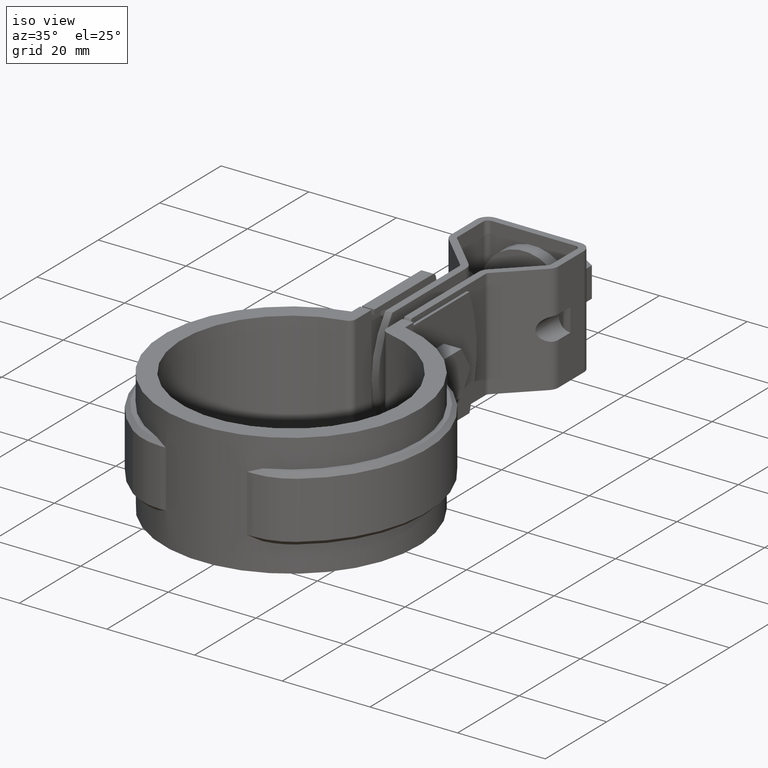
[diagram: clean part render]
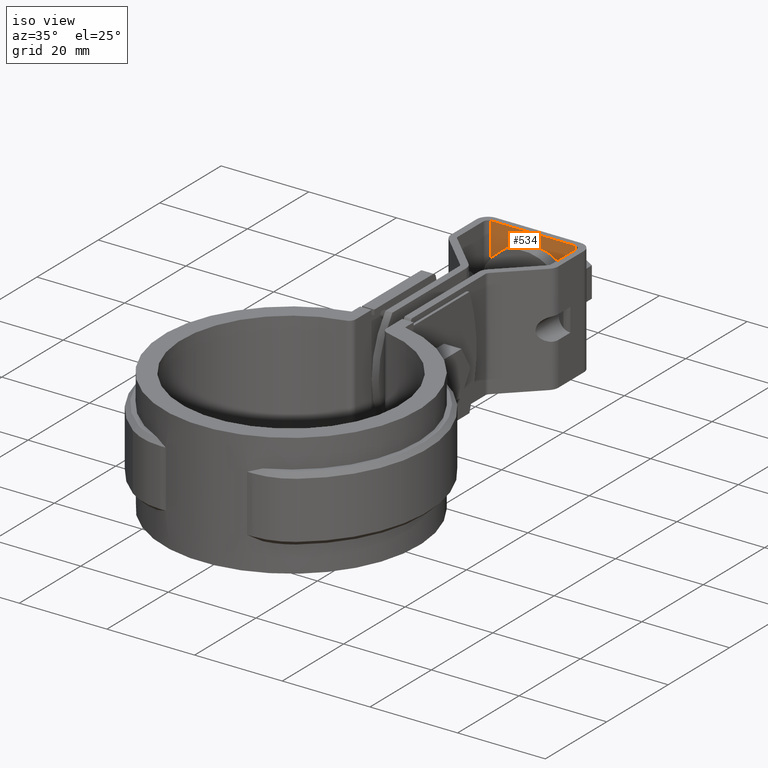
[diagram: same view with one face highlighted and labeled with its STEP entity id]
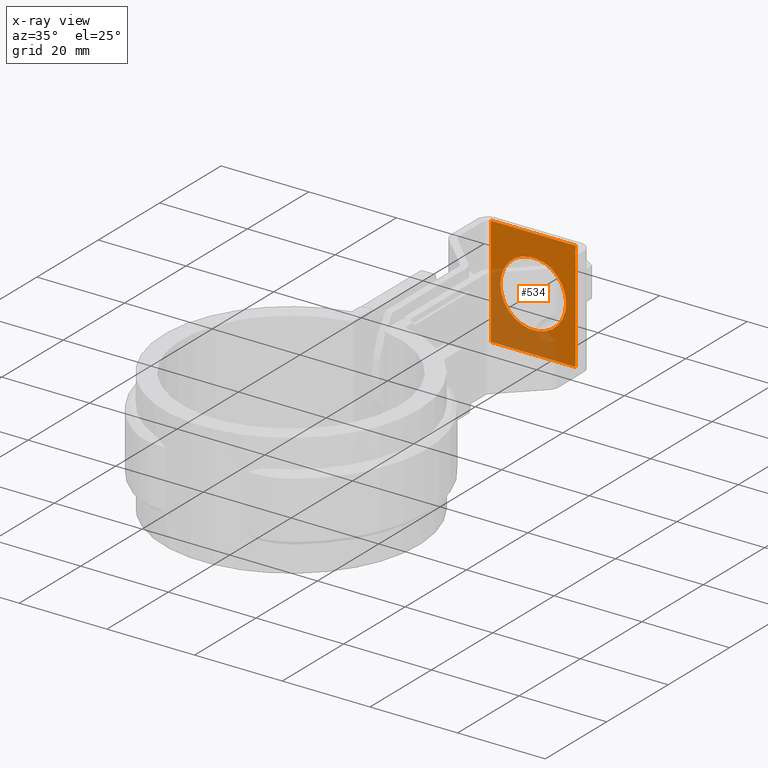
[diagram: x-ray of the same camera — body ghosted, the highlighted face saturated]
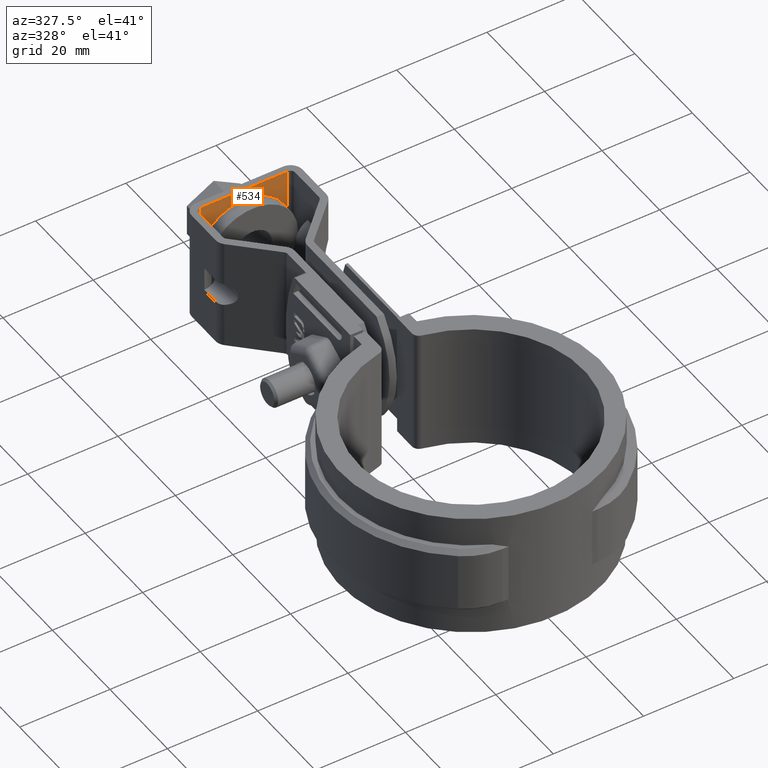
[diagram: same view with one face highlighted and labeled with its STEP entity id]
A machine part, iso view. The second image highlights one B-rep face of the part: STEP entity #534.
The next image is the same camera in x-ray: the body ghosted, the highlighted face saturated — about 37% of this face is hidden behind the body in this view.
A second angle (auxiliary view) of the same face is appended — the face is thin or edge-on in the first view.
In plain terms, the highlighted planar face has unit normal (0, -1, 0).
Its self-contained STEP definition (entity closure, byte-faithful):
#534 = ADVANCED_FACE( '', ( #1067, #1068 ), #1069, .T. );
#1067 = FACE_OUTER_BOUND( '', #2439, .T. );
#1068 = FACE_BOUND( '', #2440, .T. );
#1069 = PLANE( '', #2441 );
#2439 = EDGE_LOOP( '', ( #5508, #5509, #5510, #5511 ) );
#2440 = EDGE_LOOP( '', ( #5512 ) );
#2441 = AXIS2_PLACEMENT_3D( '', #5513, #5514, #5515 );
#5508 = ORIENTED_EDGE( '', *, *, #7444, .F. );
#5509 = ORIENTED_EDGE( '', *, *, #7380, .T. );
#5510 = ORIENTED_EDGE( '', *, *, #7491, .T. );
#5511 = ORIENTED_EDGE( '', *, *, #7492, .F. );
#5512 = ORIENTED_EDGE( '', *, *, #7480, .T. );
#5513 = CARTESIAN_POINT( '', ( 9.64999999935296, 78.8998007549166, -7.07052333348557E-008 ) );
#5514 = DIRECTION( '', ( 3.46787463341350E-012, -1.00000000000000, 5.08856068393042E-010 ) );
#5515 = DIRECTION( '', ( 1.00000000000000, 3.46787463237663E-012, -2.03765905737930E-012 ) );
#7380 = EDGE_CURVE( '', #8627, #8625, #8628, .T. );
#7444 = EDGE_CURVE( '', #8627, #8737, #8739, .T. );
#7480 = EDGE_CURVE( '', #8798, #8798, #8799, .T. );
#7491 = EDGE_CURVE( '', #8625, #8813, #8815, .T. );
#7492 = EDGE_CURVE( '', #8737, #8813, #8816, .T. );
#8625 = VERTEX_POINT( '', #12226 );
#8627 = VERTEX_POINT( '', #12228 );
#8628 = LINE( '', #12229, #12230 );
#8737 = VERTEX_POINT( '', #12403 );
#8739 = LINE( '', #12405, #12406 );
#8798 = VERTEX_POINT( '', #12509 );
#8799 = CIRCLE( '', #12510, 7.50000000000000 );
#8813 = VERTEX_POINT( '', #12531 );
#8815 = LINE( '', #12533, #12534 );
#8816 = LINE( '', #12535, #12536 );
#12226 = CARTESIAN_POINT( '', ( -9.65000000064705, 78.8998007548497, -7.06659036842083E-008 ) );
#12228 = CARTESIAN_POINT( '', ( 9.64999999935294, 78.8998007549169, -7.07052055792801E-008 ) );
#12229 = CARTESIAN_POINT( '', ( 9.64999999935296, 78.8998007549166, -7.07052333348557E-008 ) );
#12230 = VECTOR( '', #14161, 1000.00000000000 );
#12403 = CARTESIAN_POINT( '', ( 9.64999999930200, 78.8998007421955, -25.0000000707052 ) );
#12405 = CARTESIAN_POINT( '', ( 9.64999999935294, 78.8998007549169, -7.07052055792801E-008 ) );
#12406 = VECTOR( '', #14263, 1000.00000000000 );
#12509 = CARTESIAN_POINT( '', ( 7.49999999932749, 78.8997991484731, -12.5000000707009 ) );
#12510 = AXIS2_PLACEMENT_3D( '', #14321, #14322, #14323 );
#12531 = CARTESIAN_POINT( '', ( -9.65000000069799, 78.8998007421282, -25.0000000706659 ) );
#12533 = CARTESIAN_POINT( '', ( -9.65000000064705, 78.8998007548497, -7.06659036842083E-008 ) );
#12534 = VECTOR( '', #14340, 1000.00000000000 );
#12535 = CARTESIAN_POINT( '', ( 9.64999999930202, 78.8998007421952, -25.0000000707052 ) );
#12536 = VECTOR( '', #14341, 1000.00000000000 );
#14161 = DIRECTION( '', ( -1.00000000000000, -3.46787463237663E-012, 2.03765905737930E-012 ) );
#14263 = DIRECTION( '', ( -2.03765905561465E-012, -5.08856068393049E-010, -1.00000000000000 ) );
#14321 = CARTESIAN_POINT( '', ( -6.72514499787100E-010, 78.8997991484471, -12.5000000706856 ) );
#14322 = DIRECTION( '', ( -3.46787463341350E-012, 1.00000000000000, -5.08856068393042E-010 ) );
#14323 = DIRECTION( '', ( 1.00000000000000, 3.46787463237660E-012, -2.03772028769699E-012 ) );
#14340 = DIRECTION( '', ( -2.03765905561465E-012, -5.08856068393049E-010, -1.00000000000000 ) );
#14341 = DIRECTION( '', ( -1.00000000000000, -3.46787463237663E-012, 2.03765905737930E-012 ) );